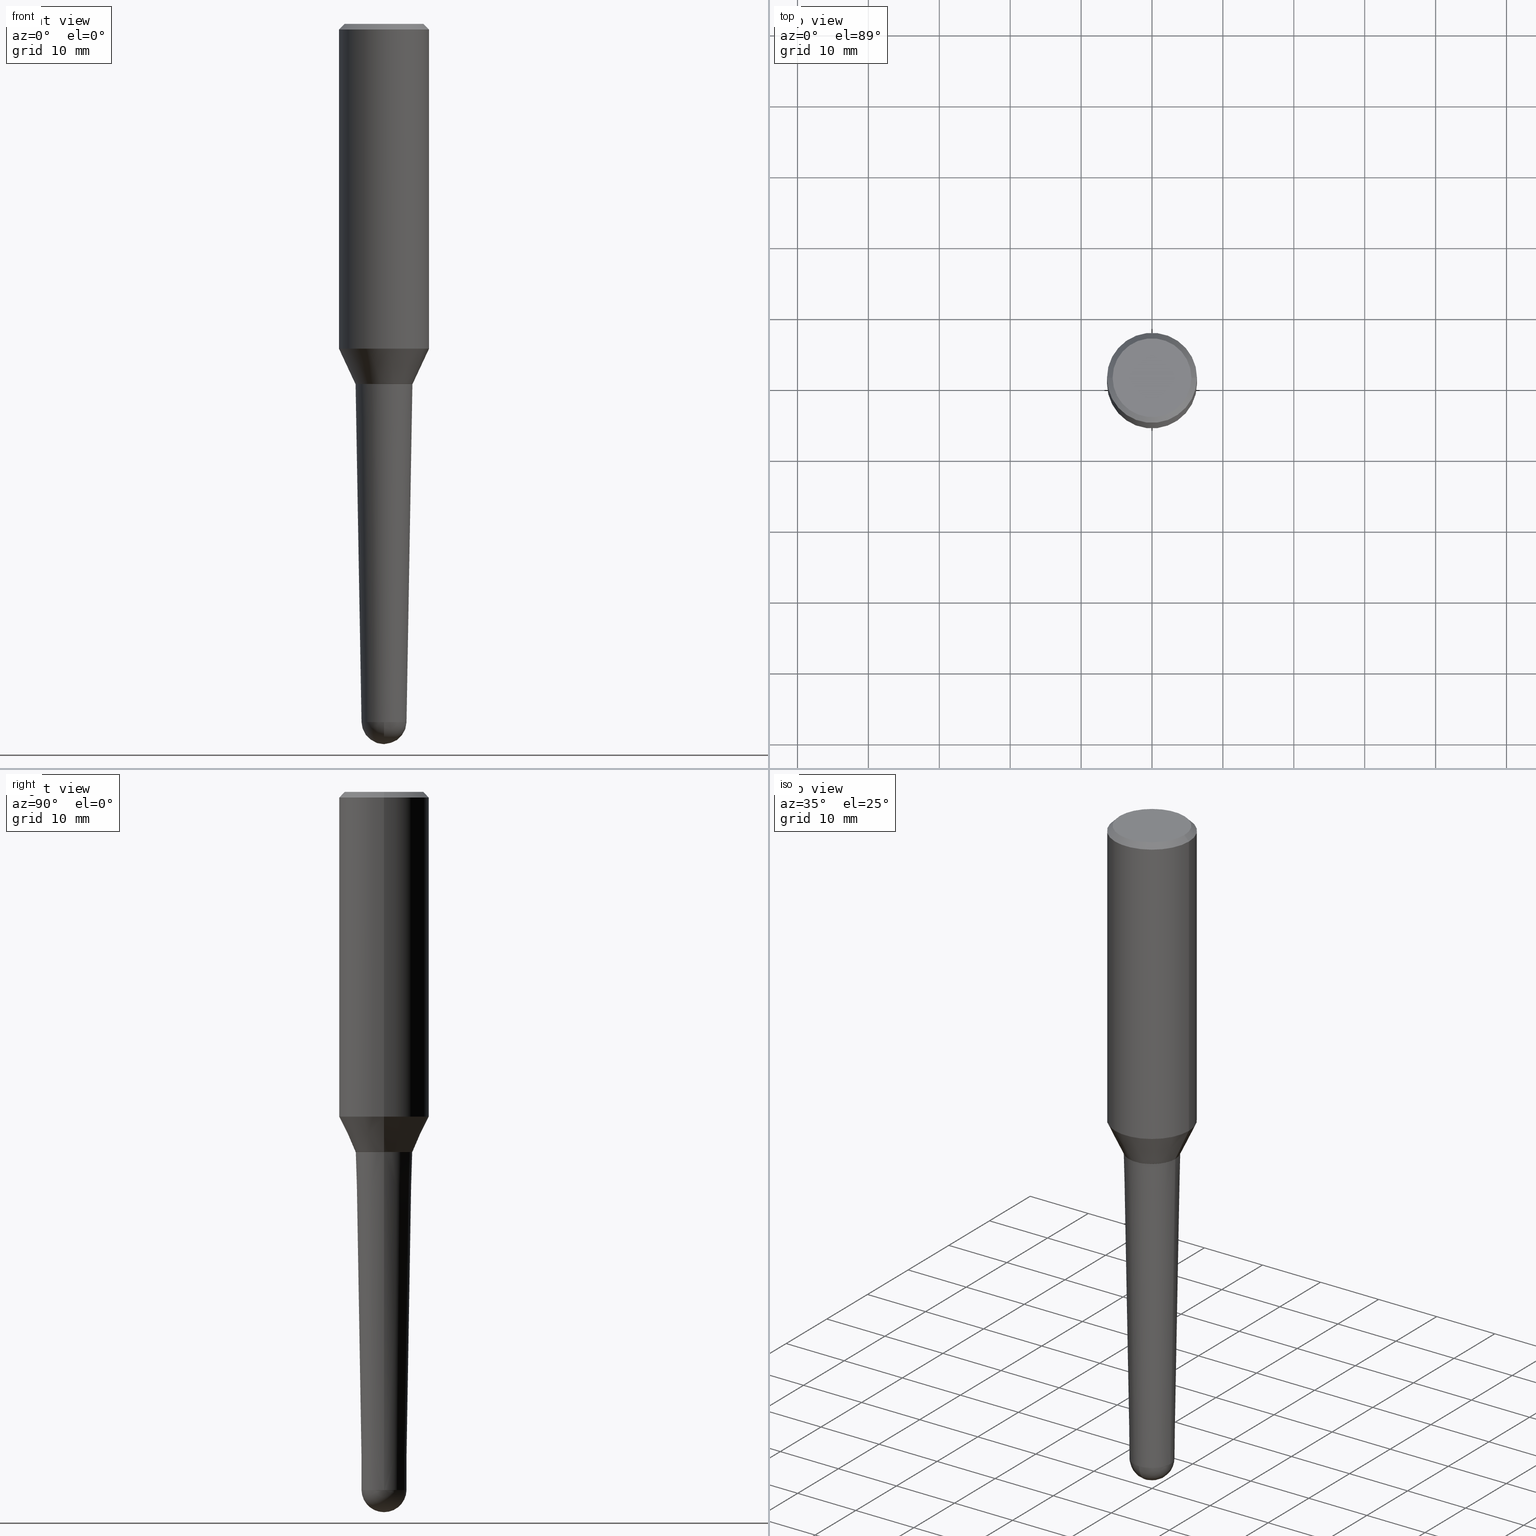
[diagram: canonical four-view strip — front | top / right | iso, engineering-drawing reading convention]
A machine part, canonical four-view strip (front | top / right | iso — engineering-drawing reading convention). The complete STEP part file that produces these views, byte-faithful:
ISO-10303-21;
HEADER;
FILE_DESCRIPTION (( 'STEP AP203' ),
    '1' );
FILE_NAME ('32484.STEP',
    '2024-03-04T15:26:41',
    ( '' ),
    ( '' ),
    'SwSTEP 2.0',
    'SolidWorks 2023',
    '' );
FILE_SCHEMA (( 'CONFIG_CONTROL_DESIGN' ));
ENDSEC;

DATA;
#1 = ORIENTED_EDGE ( 'NONE', *, *, #455, .T. ) ;
#2 = ADVANCED_FACE ( 'NONE', ( #394 ), #109, .T. ) ;
#3 = CARTESIAN_POINT ( 'NONE',  ( -0.1587472877458968035, -5.853249615722215052E-15, -1.999499999999999833 ) ) ;
#4 = ORIENTED_EDGE ( 'NONE', *, *, #215, .T. ) ;
#5 = LENGTH_MEASURE_WITH_UNIT ( LENGTH_MEASURE( 0.02539999999999999897 ), #334 );
#6 = VERTEX_POINT ( 'NONE', #405 ) ;
#7 = CIRCLE ( 'NONE', #284, 0.1249809618945493112 ) ;
#8 =( NAMED_UNIT ( * ) PLANE_ANGLE_UNIT ( ) SI_UNIT ( $, .RADIAN. ) );
#9 = VERTEX_POINT ( 'NONE', #70 ) ;
#10 = APPROVAL_STATUS ( 'not_yet_approved' ) ;
#11 = DIRECTION ( 'NONE',  ( -0.7071067811864992780, 7.493145998870180611E-15, 0.7071067811865957564 ) ) ;
#12 = APPROVAL_DATE_TIME ( #199, #86 ) ;
#13 = APPROVAL_PERSON_ORGANIZATION ( #447, #86, #155 ) ;
#14 = CIRCLE ( 'NONE', #392, 0.1249999999999999445 ) ;
#15 = LOCAL_TIME ( 10, 26, 41.00000000000000000, #201 ) ;
#16 = DIRECTION ( 'NONE',  ( 0.7071067811865496822, -7.319954787623263934E-15, -0.7071067811865454633 ) ) ;
#17 = SHAPE_DEFINITION_REPRESENTATION ( #312, #345 ) ;
#18 = PRODUCT_DEFINITION ( 'UNKNOWN', '', #461, #388 ) ;
#19 = DIRECTION ( 'NONE',  ( -2.445468806185136597E-29, 3.491481338843145583E-15, 1.000000000000000000 ) ) ;
#20 = APPROVAL ( #197, 'UNSPECIFIED' ) ;
#21 = PERSON_AND_ORGANIZATION_ROLE ( 'creator' ) ;
#22 = CARTESIAN_POINT ( 'NONE',  ( -8.880431458247209991E-16, -0.1249809618945623979, -3.877181550804660315 ) ) ;
#23 = VECTOR ( 'NONE', #267, 39.37007874015748143 ) ;
#24 = CC_DESIGN_APPROVAL ( #20, ( #461 ) ) ;
#25 = CARTESIAN_POINT ( 'NONE',  ( 4.890937612370273194E-29, -6.982962677686291165E-15, -2.000000000000000000 ) ) ;
#26 = EDGE_CURVE ( 'NONE', #180, #228, #244, .T. ) ;
#27 = FACE_OUTER_BOUND ( 'NONE', #356, .T. ) ;
#28 = FACE_OUTER_BOUND ( 'NONE', #69, .T. ) ;
#29 = DIRECTION ( 'NONE',  ( -1.000000000000000000, 6.982962677686265922E-15, -4.876176775795935793E-29 ) ) ;
#30 = CIRCLE ( 'NONE', #453, 0.1577472877458967193 ) ;
#31 = DIRECTION ( 'NONE',  ( 1.000000000000000000, -6.982962677686266711E-15, 0.000000000000000000 ) ) ;
#32 = CC_DESIGN_PERSON_AND_ORGANIZATION_ASSIGNMENT ( #294, #436, ( #167 ) ) ;
#33 = CC_DESIGN_PERSON_AND_ORGANIZATION_ASSIGNMENT ( #231, #440, ( #461 ) ) ;
#34 = CARTESIAN_POINT ( 'NONE',  ( -0.2500000000000000000, -1.427178414605506576E-15, -0.03125000000000005551 ) ) ;
#35 = ORIENTED_EDGE ( 'NONE', *, *, #278, .F. ) ;
#36 = DIRECTION ( 'NONE',  ( 2.445468806185136597E-29, -3.491481338843145583E-15, -1.000000000000000000 ) ) ;
#37 = EDGE_LOOP ( 'NONE', ( #189, #79, #35, #252 ) ) ;
#38 = AXIS2_PLACEMENT_3D ( 'NONE', #344, #240, #452 ) ;
#39 = ORIENTED_EDGE ( 'NONE', *, *, #121, .T. ) ;
#40 = SECURITY_CLASSIFICATION ( '', '', #235 ) ;
#41 = DIRECTION ( 'NONE',  ( -2.445468806185136597E-29, 3.491481338843145583E-15, 1.000000000000000000 ) ) ;
#42 = DIRECTION ( 'NONE',  ( 1.000000000000000000, -6.982962677686267499E-15, 4.852736867747363965E-29 ) ) ;
#43 = AXIS2_PLACEMENT_3D ( 'NONE', #399, #77, #42 ) ;
#44 = ORIENTED_EDGE ( 'NONE', *, *, #168, .T. ) ;
#45 = VERTEX_POINT ( 'NONE', #292 ) ;
#46 = DIRECTION ( 'NONE',  ( 1.000000000000000000, -6.982962677686265922E-15, 4.883557194083112340E-29 ) ) ;
#47 = ORIENTED_EDGE ( 'NONE', *, *, #168, .F. ) ;
#48 = DATE_AND_TIME ( #266, #338 ) ;
#49 = AXIS2_PLACEMENT_3D ( 'NONE', #246, #110, #254 ) ;
#50 = CARTESIAN_POINT ( 'NONE',  ( 9.770155035872819834E-29, -1.310851785081028701E-14, -3.875000000000000000 ) ) ;
#51 = ADVANCED_FACE ( 'NONE', ( #268 ), #307, .T. ) ;
#52 = AXIS2_PLACEMENT_3D ( 'NONE', #97, #420, #61 ) ;
#53 =( CONVERSION_BASED_UNIT ( 'INCH', #5 ) LENGTH_UNIT ( ) NAMED_UNIT ( #208 ) );
#54 = CIRCLE ( 'NONE', #247, 0.1587472877458968035 ) ;
#55 = LOCAL_TIME ( 10, 26, 41.00000000000000000, #269 ) ;
#56 = EDGE_CURVE ( 'NONE', #227, #362, #363, .T. ) ;
#57 = PERSON_AND_ORGANIZATION ( #172, #350 ) ;
#58 = APPROVAL_ROLE ( '' ) ;
#59 = CARTESIAN_POINT ( 'NONE',  ( 7.642090019328565002E-31, -1.091087918388484967E-16, -0.03125000000000005551 ) ) ;
#60 = CARTESIAN_POINT ( 'NONE',  ( -0.1587472877458968035, -5.853249615722215052E-15, -1.999499999999999833 ) ) ;
#61 = DIRECTION ( 'NONE',  ( 6.982962677686265922E-15, 1.000000000000000000, -4.370956789862822727E-15 ) ) ;
#62 = DIRECTION ( 'NONE',  ( 1.000000000000000000, -6.982962677686267499E-15, 0.000000000000000000 ) ) ;
#63 = CIRCLE ( 'NONE', #387, 0.1582472877458967198 ) ;
#64 = DIRECTION ( 'NONE',  ( 1.000000000000000000, -6.982962677686266711E-15, 0.000000000000000000 ) ) ;
#65 = EDGE_CURVE ( 'NONE', #357, #143, #63, .T. ) ;
#66 = DIRECTION ( 'NONE',  ( -2.445468806185136597E-29, 3.491481338843145583E-15, 1.000000000000000000 ) ) ;
#67 = AXIS2_PLACEMENT_3D ( 'NONE', #25, #205, #164 ) ;
#68 = FACE_OUTER_BOUND ( 'NONE', #117, .T. ) ;
#69 = EDGE_LOOP ( 'NONE', ( #176, #119, #80, #47, #432 ) ) ;
#70 = CARTESIAN_POINT ( 'NONE',  ( -0.1249809618945493112, -9.255582334932912889E-15, -3.877181550804660759 ) ) ;
#71 = CARTESIAN_POINT ( 'NONE',  ( 4.889714877967179832E-29, -6.981216937016868873E-15, -1.999499999999999833 ) ) ;
#72 = EDGE_LOOP ( 'NONE', ( #250, #286, #328, #401 ) ) ;
#73 = VERTEX_POINT ( 'NONE', #239 ) ;
#74 = CARTESIAN_POINT ( 'NONE',  ( 9.481526538409310003E-29, -1.353710703194140102E-14, -3.877181550804660759 ) ) ;
#75 = LOCAL_TIME ( 10, 26, 41.00000000000000000, #343 ) ;
#76 = AXIS2_PLACEMENT_3D ( 'NONE', #380, #101, #448 ) ;
#77 = DIRECTION ( 'NONE',  ( -2.445468806185136597E-29, 3.491481338843145583E-15, 1.000000000000000000 ) ) ;
#78 = CARTESIAN_POINT ( 'NONE',  ( 0.2500000000000001110, -1.745740669421565494E-15, 5.931196827434418047E-16 ) ) ;
#79 = ORIENTED_EDGE ( 'NONE', *, *, #418, .T. ) ;
#80 = ORIENTED_EDGE ( 'NONE', *, *, #237, .F. ) ;
#81 = ORIENTED_EDGE ( 'NONE', *, *, #411, .T. ) ;
#82 = LINE ( 'NONE', #264, #358 ) ;
#83 = VERTEX_POINT ( 'NONE', #135 ) ;
#84 = EDGE_LOOP ( 'NONE', ( #151, #398, #219, #283 ) ) ;
#85 = FACE_OUTER_BOUND ( 'NONE', #112, .T. ) ;
#86 = APPROVAL ( #10, 'UNSPECIFIED' ) ;
#87 = CIRCLE ( 'NONE', #38, 0.2500000000000002220 ) ;
#88 = CC_DESIGN_SECURITY_CLASSIFICATION ( #40, ( #461 ) ) ;
#89 = CARTESIAN_POINT ( 'NONE',  ( 7.642090019328565002E-31, -1.091087918388484967E-16, -0.03125000000000005551 ) ) ;
#90 = DIRECTION ( 'NONE',  ( -2.445468806185136597E-29, 3.491481338843145583E-15, 1.000000000000000000 ) ) ;
#91 = PERSON_AND_ORGANIZATION ( #172, #350 ) ;
#92 = APPROVAL_STATUS ( 'not_yet_approved' ) ;
#93 = DATE_TIME_ROLE ( 'classification_date' ) ;
#94 = CIRCLE ( 'NONE', #424, 0.1249809618945493112 ) ;
#95 = DIRECTION ( 'NONE',  ( 1.000000000000000000, -6.982962677686266711E-15, 4.880466792705915158E-29 ) ) ;
#96 = DIRECTION ( 'NONE',  ( -2.445468806185136597E-29, 3.491481338843145583E-15, 1.000000000000000000 ) ) ;
#97 = CARTESIAN_POINT ( 'NONE',  ( 9.770155035872819834E-29, -1.310851785081028701E-14, -3.875000000000000000 ) ) ;
#98 = AXIS2_PLACEMENT_3D ( 'NONE', #71, #217, #179 ) ;
#99 = CARTESIAN_POINT ( 'NONE',  ( 4.890937612370273194E-29, -6.982962677686291165E-15, -2.000000000000000000 ) ) ;
#100 = UNCERTAINTY_MEASURE_WITH_UNIT (LENGTH_MEASURE( 1.000000000000000082E-05 ), #53, 'distance_accuracy_value', 'NONE');
#101 = DIRECTION ( 'NONE',  ( -2.445468806185136597E-29, 3.491481338843145583E-15, 1.000000000000000000 ) ) ;
#102 = CC_DESIGN_PERSON_AND_ORGANIZATION_ASSIGNMENT ( #410, #154, ( #40 ) ) ;
#103 = ADVANCED_FACE ( 'NONE', ( #131 ), #243, .T. ) ;
#104 = DIRECTION ( 'NONE',  ( -7.105427357601001070E-15, -1.000000000000000000, 0.000000000000000000 ) ) ;
#105 = CONICAL_SURFACE ( 'NONE', #230, 0.1582472877458967198, 0.7853981633973801113 ) ;
#106 = DIRECTION ( 'NONE',  ( -2.445468806185136597E-29, 3.491481338843145583E-15, 1.000000000000000000 ) ) ;
#107 = ORIENTED_EDGE ( 'NONE', *, *, #381, .F. ) ;
#108 = DIRECTION ( 'NONE',  ( 1.000000000000000000, -6.982962677686267499E-15, 4.852736867747363965E-29 ) ) ;
#109 = CYLINDRICAL_SURFACE ( 'NONE', #43, 0.2500000000000001110 ) ;
#110 = DIRECTION ( 'NONE',  ( -2.445468806185136597E-29, 3.491481338843145583E-15, 1.000000000000000000 ) ) ;
#111 = VERTEX_POINT ( 'NONE', #347 ) ;
#112 = EDGE_LOOP ( 'NONE', ( #433, #330 ) ) ;
#113 = CARTESIAN_POINT ( 'NONE',  ( 9.770155035872819834E-29, -1.310851785081028701E-14, -3.875000000000000000 ) ) ;
#114 = CONICAL_SURFACE ( 'NONE', #191, 0.2500000000000000000, 0.7853981633974512766 ) ;
#115 = ORIENTED_EDGE ( 'NONE', *, *, #26, .F. ) ;
#116 = LOCAL_TIME ( 10, 26, 41.00000000000000000, #368 ) ;
#117 = EDGE_LOOP ( 'NONE', ( #332, #184, #259, #367 ) ) ;
#118 = DIRECTION ( 'NONE',  ( -2.445468806185136597E-29, 3.491481338843145583E-15, 1.000000000000000000 ) ) ;
#119 = ORIENTED_EDGE ( 'NONE', *, *, #378, .T. ) ;
#120 = EDGE_LOOP ( 'NONE', ( #39, #365, #115, #403 ) ) ;
#121 = EDGE_CURVE ( 'NONE', #143, #357, #144, .T. ) ;
#122 = DIRECTION ( 'NONE',  ( 1.000000000000000000, 0.000000000000000000, 0.000000000000000000 ) ) ;
#123 = VECTOR ( 'NONE', #351, 39.37007874015748143 ) ;
#124 = DIRECTION ( 'NONE',  ( 1.000000000000000000, -6.982962677686266711E-15, 0.000000000000000000 ) ) ;
#125 = CARTESIAN_POINT ( 'NONE',  ( -0.2500000000000000000, 1.636631877582718169E-15, -0.03125000000000005551 ) ) ;
#126 = AXIS2_PLACEMENT_3D ( 'NONE', #216, #397, #258 ) ;
#127 = LINE ( 'NONE', #346, #23 ) ;
#128 = CALENDAR_DATE ( 2024, 4, 3 ) ;
#129 = AXIS2_PLACEMENT_3D ( 'NONE', #282, #423, #421 ) ;
#130 = LINE ( 'NONE', #204, #333 ) ;
#131 = FACE_OUTER_BOUND ( 'NONE', #72, .T. ) ;
#132 = DIRECTION ( 'NONE',  ( 1.000000000000000000, -6.982962677686266711E-15, 0.000000000000000000 ) ) ;
#133 = AXIS2_PLACEMENT_3D ( 'NONE', #138, #106, #249 ) ;
#134 = MANIFOLD_SOLID_BREP ( 'Body-Move/Copy2[1]', #329 ) ;
#135 = CARTESIAN_POINT ( 'NONE',  ( 0.2500000000000000000, -1.854849461260415384E-15, -0.03125000000000005551 ) ) ;
#136 = EDGE_CURVE ( 'NONE', #390, #83, #385, .T. ) ;
#137 = CARTESIAN_POINT ( 'NONE',  ( -0.2500000000000002220, -4.521604876772416489E-15, -1.803807927055801397 ) ) ;
#138 = CARTESIAN_POINT ( 'NONE',  ( 4.411156017964436703E-29, -6.297961716172668531E-15, -1.803807927055801397 ) ) ;
#139 = VECTOR ( 'NONE', #160, 39.37007874015748143 ) ;
#140 = DIRECTION ( 'NONE',  ( -2.445468806185136597E-29, 3.491481338843145583E-15, 1.000000000000000000 ) ) ;
#141 = EDGE_LOOP ( 'NONE', ( #324, #438, #253, #44, #430 ) ) ;
#142 = DIRECTION ( 'NONE',  ( -2.445468806185136597E-29, 3.491481338843145583E-15, 1.000000000000000000 ) ) ;
#143 = VERTEX_POINT ( 'NONE', #273 ) ;
#144 = CIRCLE ( 'NONE', #416, 0.1582472877458967198 ) ;
#145 = CARTESIAN_POINT ( 'NONE',  ( 7.642090019328565002E-31, -1.091087918388484967E-16, -0.03125000000000005551 ) ) ;
#146 = ORIENTED_EDGE ( 'NONE', *, *, #188, .T. ) ;
#147 = ORIENTED_EDGE ( 'NONE', *, *, #301, .T. ) ;
#148 = CARTESIAN_POINT ( 'NONE',  ( 0.000000000000000000, 0.000000000000000000, 0.000000000000000000 ) ) ;
#149 = ADVANCED_FACE ( 'NONE', ( #28 ), #210, .T. ) ;
#150 = CIRCLE ( 'NONE', #67, 0.1577472877458967193 ) ;
#151 = ORIENTED_EDGE ( 'NONE', *, *, #26, .T. ) ;
#152 = CARTESIAN_POINT ( 'NONE',  ( 0.2500000000000000000, -1.824233291281731597E-15, -0.03125000000000005551 ) ) ;
#153 = EDGE_LOOP ( 'NONE', ( #256, #354, #146, #300 ) ) ;
#154 = PERSON_AND_ORGANIZATION_ROLE ( 'classification_officer' ) ;
#155 = APPROVAL_ROLE ( '' ) ;
#156 = DIRECTION ( 'NONE',  ( -2.438088387897960049E-29, 3.491481338843145188E-15, 1.000000000000000000 ) ) ;
#157 = AXIS2_PLACEMENT_3D ( 'NONE', #320, #348, #29 ) ;
#158 = DIRECTION ( 'NONE',  ( -0.7071067811865496822, 2.468850131082278754E-15, -0.7071067811865454633 ) ) ;
#159 = PERSON_AND_ORGANIZATION_ROLE ( 'creator' ) ;
#160 = DIRECTION ( 'NONE',  ( 0.7071067811864992780, -2.468850131081751401E-15, 0.7071067811865957564 ) ) ;
#161 = DATE_AND_TIME ( #128, #75 ) ;
#162 = PLANE ( 'NONE',  #442 ) ;
#163 = CC_DESIGN_DATE_AND_TIME_ASSIGNMENT ( #372, #93, ( #40 ) ) ;
#164 = DIRECTION ( 'NONE',  ( 1.000000000000000000, -6.982962677686264344E-15, 0.000000000000000000 ) ) ;
#165 = AXIS2_PLACEMENT_3D ( 'NONE', #59, #96, #379 ) ;
#166 = DIRECTION ( 'NONE',  ( -2.445468806185136597E-29, 3.491481338843145583E-15, 1.000000000000000000 ) ) ;
#167 = PRODUCT ( '32484', '32484', '', ( #260 ) ) ;
#168 = EDGE_CURVE ( 'NONE', #321, #111, #130, .T. ) ;
#169 = CARTESIAN_POINT ( 'NONE',  ( 0.1587472877458968035, -8.089743322530388676E-15, -1.999499999999999833 ) ) ;
#170 =( GEOMETRIC_REPRESENTATION_CONTEXT ( 3 ) GLOBAL_UNCERTAINTY_ASSIGNED_CONTEXT ( ( #100 ) ) GLOBAL_UNIT_ASSIGNED_CONTEXT ( ( #53, #8, #302 ) ) REPRESENTATION_CONTEXT ( 'NONE', 'WORKASPACE' ) );
#171 = CARTESIAN_POINT ( 'NONE',  ( 0.1249809618945493112, -1.124717526239724726E-14, -3.877181550804660759 ) ) ;
#172 = PERSON ( 'UNSPECIFIED', 'UNSPECIFIED', 'UNSPECIFIED', ('UNSPECIFIED'), ('UNSPECIFIED'), ('UNSPECIFIED') ) ;
#173 = EDGE_LOOP ( 'NONE', ( #335, #182, #226, #297 ) ) ;
#174 = DIRECTION ( 'NONE',  ( 1.000000000000000000, -6.982962677686266711E-15, 0.000000000000000000 ) ) ;
#175 = FACE_OUTER_BOUND ( 'NONE', #37, .T. ) ;
#176 = ORIENTED_EDGE ( 'NONE', *, *, #366, .T. ) ;
#177 = ADVANCED_FACE ( 'NONE', ( #382 ), #340, .T. ) ;
#178 = VECTOR ( 'NONE', #158, 39.37007874015748143 ) ;
#179 = DIRECTION ( 'NONE',  ( 1.000000000000000000, -6.982962677686266711E-15, 0.000000000000000000 ) ) ;
#180 = VERTEX_POINT ( 'NONE', #169 ) ;
#181 = APPROVAL_PERSON_ORGANIZATION ( #57, #414, #374 ) ;
#182 = ORIENTED_EDGE ( 'NONE', *, *, #381, .T. ) ;
#183 = DIRECTION ( 'NONE',  ( 1.000000000000000000, -6.982962677686267499E-15, 0.000000000000000000 ) ) ;
#184 = ORIENTED_EDGE ( 'NONE', *, *, #441, .T. ) ;
#185 = ORIENTED_EDGE ( 'NONE', *, *, #136, .T. ) ;
#186 = CLOSED_SHELL ( 'NONE', ( #248, #386, #177, #371, #422, #280, #396, #2, #407, #203 ) ) ;
#187 = EDGE_CURVE ( 'NONE', #45, #364, #87, .T. ) ;
#188 = EDGE_CURVE ( 'NONE', #143, #180, #271, .T. ) ;
#189 = ORIENTED_EDGE ( 'NONE', *, *, #245, .F. ) ;
#190 = CARTESIAN_POINT ( 'NONE',  ( 4.890937612370273194E-29, -6.982962677686291165E-15, -2.000000000000000000 ) ) ;
#191 = AXIS2_PLACEMENT_3D ( 'NONE', #145, #36, #221 ) ;
#192 = VECTOR ( 'NONE', #331, 39.37007874015748143 ) ;
#193 = ORIENTED_EDGE ( 'NONE', *, *, #301, .F. ) ;
#194 = CALENDAR_DATE ( 2024, 4, 3 ) ;
#195 = CARTESIAN_POINT ( 'NONE',  ( 4.890937612370273194E-29, -6.982962677686291165E-15, -2.000000000000000000 ) ) ;
#196 = DIRECTION ( 'NONE',  ( 2.445468806185136597E-29, -3.491481338843145583E-15, -1.000000000000000000 ) ) ;
#197 = APPROVAL_STATUS ( 'not_yet_approved' ) ;
#198 = LINE ( 'NONE', #125, #178 ) ;
#199 = DATE_AND_TIME ( #409, #55 ) ;
#200 = CONICAL_SURFACE ( 'NONE', #98, 0.1587472877458968035, 0.4363323129985704485 ) ;
#201 = COORDINATED_UNIVERSAL_TIME_OFFSET ( 5, 0, .BEHIND. ) ;
#202 = COORDINATED_UNIVERSAL_TIME_OFFSET ( 5, 0, .BEHIND. ) ;
#203 = ADVANCED_FACE ( 'NONE', ( #27 ), #162, .F. ) ;
#204 = CARTESIAN_POINT ( 'NONE',  ( 0.1249809618945493112, -1.440984442427236798E-14, -3.877181550804660759 ) ) ;
#205 = DIRECTION ( 'NONE',  ( -2.445468806185136597E-29, 3.491481338843145583E-15, 1.000000000000000000 ) ) ;
#206 = AXIS2_PLACEMENT_3D ( 'NONE', #389, #207, #64 ) ;
#207 = DIRECTION ( 'NONE',  ( -2.445468806185136597E-29, 3.491481338843145583E-15, 1.000000000000000000 ) ) ;
#208 = DIMENSIONAL_EXPONENTS ( 1.000000000000000000, 0.000000000000000000, 0.000000000000000000, 0.000000000000000000, 0.000000000000000000, 0.000000000000000000, 0.000000000000000000 ) ;
#209 = DIRECTION ( 'NONE',  ( -2.445468806185136597E-29, 3.491481338843145583E-15, 1.000000000000000000 ) ) ;
#210 = CONICAL_SURFACE ( 'NONE', #76, 0.1249809618945493112, 0.01745329251994322262 ) ;
#211 = CARTESIAN_POINT ( 'NONE',  ( 0.1582472877458967198, -8.087997581860967961E-15, -2.000000000000000000 ) ) ;
#212 = ORIENTED_EDGE ( 'NONE', *, *, #56, .T. ) ;
#213 = FACE_OUTER_BOUND ( 'NONE', #295, .T. ) ;
#214 = CYLINDRICAL_SURFACE ( 'NONE', #375, 0.2500000000000001110 ) ;
#215 = EDGE_CURVE ( 'NONE', #228, #180, #54, .T. ) ;
#216 = CARTESIAN_POINT ( 'NONE',  ( 4.889714877967179832E-29, -6.981216937016868873E-15, -1.999499999999999833 ) ) ;
#217 = DIRECTION ( 'NONE',  ( -2.445468806185136597E-29, 3.491481338843145583E-15, 1.000000000000000000 ) ) ;
#218 = ORIENTED_EDGE ( 'NONE', *, *, #255, .F. ) ;
#219 = ORIENTED_EDGE ( 'NONE', *, *, #187, .F. ) ;
#220 = AXIS2_PLACEMENT_3D ( 'NONE', #74, #142, #31 ) ;
#221 = DIRECTION ( 'NONE',  ( -1.000000000000000000, 6.982962677686266711E-15, 0.000000000000000000 ) ) ;
#222 = VERTEX_POINT ( 'NONE', #445 ) ;
#223 = EDGE_CURVE ( 'NONE', #180, #45, #127, .T. ) ;
#224 = FACE_OUTER_BOUND ( 'NONE', #458, .T. ) ;
#225 = VERTEX_POINT ( 'NONE', #22 ) ;
#226 = ORIENTED_EDGE ( 'NONE', *, *, #272, .T. ) ;
#227 = VERTEX_POINT ( 'NONE', #310 ) ;
#228 = VERTEX_POINT ( 'NONE', #60 ) ;
#229 = LINE ( 'NONE', #299, #192 ) ;
#230 = AXIS2_PLACEMENT_3D ( 'NONE', #359, #66, #183 ) ;
#231 = PERSON_AND_ORGANIZATION ( #172, #350 ) ;
#232 = DIRECTION ( 'NONE',  ( 6.982962677686265922E-15, 1.000000000000000000, 0.000000000000000000 ) ) ;
#233 = CARTESIAN_POINT ( 'NONE',  ( 7.642090019328565002E-31, -1.091087918388484967E-16, -0.03125000000000005551 ) ) ;
#234 = DATE_AND_TIME ( #342, #15 ) ;
#235 = SECURITY_CLASSIFICATION_LEVEL ( 'unclassified' ) ;
#236 = AXIS2_PLACEMENT_3D ( 'NONE', #304, #118, #124 ) ;
#237 = EDGE_CURVE ( 'NONE', #111, #222, #150, .T. ) ;
#238 = CC_DESIGN_PERSON_AND_ORGANIZATION_ASSIGNMENT ( #303, #21, ( #18 ) ) ;
#239 = CARTESIAN_POINT ( 'NONE',  ( 8.727373923310620192E-16, 0.1249809618945357664, -3.877181550804661203 ) ) ;
#240 = DIRECTION ( 'NONE',  ( -2.445468806185136597E-29, 3.491481338843145583E-15, 1.000000000000000000 ) ) ;
#241 = CIRCLE ( 'NONE', #220, 0.1249809618945493112 ) ;
#242 = DIRECTION ( 'NONE',  ( -2.445468806185136597E-29, 3.491481338843145583E-15, 1.000000000000000000 ) ) ;
#243 = SPHERICAL_SURFACE ( 'NONE', #52, 0.1249999999999999445 ) ;
#244 = CIRCLE ( 'NONE', #126, 0.1587472877458968035 ) ;
#245 = EDGE_CURVE ( 'NONE', #6, #225, #419, .T. ) ;
#246 = CARTESIAN_POINT ( 'NONE',  ( 1.325193512763255586E-44, -1.892025123553597709E-30, -5.418975328622247529E-16 ) ) ;
#247 = AXIS2_PLACEMENT_3D ( 'NONE', #449, #242, #277 ) ;
#248 = ADVANCED_FACE ( 'NONE', ( #462 ), #114, .T. ) ;
#249 = DIRECTION ( 'NONE',  ( 1.000000000000000000, -6.982962677686268288E-15, 0.000000000000000000 ) ) ;
#250 = ORIENTED_EDGE ( 'NONE', *, *, #418, .F. ) ;
#251 = FACE_OUTER_BOUND ( 'NONE', #460, .T. ) ;
#252 = ORIENTED_EDGE ( 'NONE', *, *, #318, .F. ) ;
#253 = ORIENTED_EDGE ( 'NONE', *, *, #318, .T. ) ;
#254 = DIRECTION ( 'NONE',  ( 1.000000000000000000, -6.982962677686266711E-15, 4.880466792705915158E-29 ) ) ;
#255 = EDGE_CURVE ( 'NONE', #228, #364, #327, .T. ) ;
#256 = ORIENTED_EDGE ( 'NONE', *, *, #426, .F. ) ;
#257 = DIRECTION ( 'NONE',  ( 6.982962677686265922E-15, 1.000000000000000000, -4.370956789862822727E-15 ) ) ;
#258 = DIRECTION ( 'NONE',  ( 1.000000000000000000, -6.982962677686266711E-15, 0.000000000000000000 ) ) ;
#259 = ORIENTED_EDGE ( 'NONE', *, *, #455, .F. ) ;
#260 = MECHANICAL_CONTEXT ( 'NONE', #316, 'mechanical' ) ;
#261 = ORIENTED_EDGE ( 'NONE', *, *, #56, .F. ) ;
#262 = DIRECTION ( 'NONE',  ( -2.445468806185136597E-29, 3.491481338843145583E-15, 1.000000000000000000 ) ) ;
#263 = AXIS2_PLACEMENT_3D ( 'NONE', #279, #395, #104 ) ;
#264 = CARTESIAN_POINT ( 'NONE',  ( -0.1582472877458967198, -5.858548070070438242E-15, -2.000000000000000000 ) ) ;
#265 = AXIS2_PLACEMENT_3D ( 'NONE', #313, #274, #95 ) ;
#266 = CALENDAR_DATE ( 2024, 4, 3 ) ;
#267 = DIRECTION ( 'NONE',  ( 0.4226182617406886166, 2.132291770428340684E-16, 0.9063077870366550437 ) ) ;
#268 = FACE_OUTER_BOUND ( 'NONE', #141, .T. ) ;
#269 = COORDINATED_UNIVERSAL_TIME_OFFSET ( 5, 0, .BEHIND. ) ;
#270 = CIRCLE ( 'NONE', #49, 0.2187500000000003053 ) ;
#271 = LINE ( 'NONE', #211, #139 ) ;
#272 = EDGE_CURVE ( 'NONE', #45, #83, #456, .T. ) ;
#273 = CARTESIAN_POINT ( 'NONE',  ( 0.1582472877458967198, -8.087997581860967961E-15, -2.000000000000000000 ) ) ;
#274 = DIRECTION ( 'NONE',  ( -2.445468806185136597E-29, 3.491481338843145583E-15, 1.000000000000000000 ) ) ;
#275 = APPROVAL_PERSON_ORGANIZATION ( #91, #20, #58 ) ;
#276 = VECTOR ( 'NONE', #16, 39.37007874015748143 ) ;
#277 = DIRECTION ( 'NONE',  ( 1.000000000000000000, -6.982962677686266711E-15, 0.000000000000000000 ) ) ;
#278 = EDGE_CURVE ( 'NONE', #321, #73, #241, .T. ) ;
#279 = CARTESIAN_POINT ( 'NONE',  ( 9.770155035872819834E-29, -1.310851785081028701E-14, -3.875000000000000000 ) ) ;
#280 = ADVANCED_FACE ( 'NONE', ( #431 ), #105, .T. ) ;
#281 = CC_DESIGN_DATE_AND_TIME_ASSIGNMENT ( #48, #341, ( #18 ) ) ;
#282 = CARTESIAN_POINT ( 'NONE',  ( 4.890937612370273194E-29, -6.982962677686291165E-15, -2.000000000000000000 ) ) ;
#283 = ORIENTED_EDGE ( 'NONE', *, *, #223, .F. ) ;
#284 = AXIS2_PLACEMENT_3D ( 'NONE', #457, #140, #174 ) ;
#285 = FACE_OUTER_BOUND ( 'NONE', #120, .T. ) ;
#286 = ORIENTED_EDGE ( 'NONE', *, *, #245, .T. ) ;
#287 = ADVANCED_FACE ( 'NONE', ( #175 ), #290, .T. ) ;
#288 = DIRECTION ( 'NONE',  ( -0.4226182617406886166, 6.167240084480777658E-15, 0.9063077870366550437 ) ) ;
#289 = EDGE_LOOP ( 'NONE', ( #261, #291, #1, #437 ) ) ;
#290 = SPHERICAL_SURFACE ( 'NONE', #369, 0.1249999999999999445 ) ;
#291 = ORIENTED_EDGE ( 'NONE', *, *, #446, .T. ) ;
#292 = CARTESIAN_POINT ( 'NONE',  ( 0.2500000000000002220, -8.043702385594237575E-15, -1.803807927055801397 ) ) ;
#293 = CIRCLE ( 'NONE', #412, 0.2500000000000000000 ) ;
#294 = PERSON_AND_ORGANIZATION ( #172, #350 ) ;
#295 = EDGE_LOOP ( 'NONE', ( #325, #428 ) ) ;
#296 = CC_DESIGN_APPROVAL ( #414, ( #18 ) ) ;
#297 = ORIENTED_EDGE ( 'NONE', *, *, #136, .F. ) ;
#298 = APPLICATION_CONTEXT ( 'configuration controlled 3d designs of mechanical parts and assemblies' ) ;
#299 = CARTESIAN_POINT ( 'NONE',  ( -0.2500000000000001110, 1.776356839400253620E-15, 5.931196827434174486E-16 ) ) ;
#300 = ORIENTED_EDGE ( 'NONE', *, *, #215, .F. ) ;
#301 = EDGE_CURVE ( 'NONE', #362, #227, #270, .T. ) ;
#302 =( NAMED_UNIT ( * ) SI_UNIT ( $, .STERADIAN. ) SOLID_ANGLE_UNIT ( ) );
#303 = PERSON_AND_ORGANIZATION ( #172, #350 ) ;
#304 = CARTESIAN_POINT ( 'NONE',  ( 9.481526538409310003E-29, -1.353710703194140102E-14, -3.877181550804660759 ) ) ;
#305 = AXIS2_PLACEMENT_3D ( 'NONE', #195, #156, #339 ) ;
#306 = LINE ( 'NONE', #152, #276 ) ;
#307 = CONICAL_SURFACE ( 'NONE', #444, 0.1249809618945493112, 0.01745329251994322262 ) ;
#308 = DIRECTION ( 'NONE',  ( 2.438088387897960049E-29, -3.491481338843145188E-15, -1.000000000000000000 ) ) ;
#309 = APPROVAL_DATE_TIME ( #161, #20 ) ;
#310 = CARTESIAN_POINT ( 'NONE',  ( 0.2187500000000003053, -1.662483614147129232E-15, -5.418975328622136103E-16 ) ) ;
#311 = VECTOR ( 'NONE', #288, 39.37007874015748143 ) ;
#312 = PRODUCT_DEFINITION_SHAPE ( 'NONE', 'NONE',  #18 ) ;
#313 = CARTESIAN_POINT ( 'NONE',  ( 1.325193512763255586E-44, -1.892025123553597709E-30, -5.418975328622247529E-16 ) ) ;
#314 = DIRECTION ( 'NONE',  ( -1.000000000000000000, 6.982962677686265922E-15, -4.876176775795935793E-29 ) ) ;
#315 = VECTOR ( 'NONE', #323, 39.37007874015748143 ) ;
#316 = APPLICATION_CONTEXT ( 'configuration controlled 3d designs of mechanical parts and assemblies' ) ;
#317 = CARTESIAN_POINT ( 'NONE',  ( -0.1582472877458967198, -5.855898842896326253E-15, -2.000000000000000000 ) ) ;
#318 = EDGE_CURVE ( 'NONE', #225, #321, #94, .T. ) ;
#319 = LINE ( 'NONE', #391, #123 ) ;
#320 = CARTESIAN_POINT ( 'NONE',  ( 4.890937612370273194E-29, -6.982962677686291165E-15, -2.000000000000000000 ) ) ;
#321 = VERTEX_POINT ( 'NONE', #171 ) ;
#322 = AXIS2_PLACEMENT_3D ( 'NONE', #89, #196, #439 ) ;
#323 = DIRECTION ( 'NONE',  ( -2.445468806185136877E-29, 3.491481338843145188E-15, 1.000000000000000000 ) ) ;
#324 = ORIENTED_EDGE ( 'NONE', *, *, #378, .F. ) ;
#325 = ORIENTED_EDGE ( 'NONE', *, *, #237, .T. ) ;
#326 = ORIENTED_EDGE ( 'NONE', *, *, #446, .F. ) ;
#327 = LINE ( 'NONE', #3, #311 ) ;
#328 = ORIENTED_EDGE ( 'NONE', *, *, #450, .F. ) ;
#329 = CLOSED_SHELL ( 'NONE', ( #149, #103, #287, #51, #353 ) ) ;
#330 = ORIENTED_EDGE ( 'NONE', *, *, #65, .F. ) ;
#331 = DIRECTION ( 'NONE',  ( -2.445468806185136877E-29, 3.491481338843145188E-15, 1.000000000000000000 ) ) ;
#332 = ORIENTED_EDGE ( 'NONE', *, *, #187, .T. ) ;
#333 = VECTOR ( 'NONE', #384, 39.37007874015748143 ) ;
#334 =( LENGTH_UNIT ( ) NAMED_UNIT ( * ) SI_UNIT ( $, .METRE. ) );
#335 = ORIENTED_EDGE ( 'NONE', *, *, #441, .F. ) ;
#336 = APPROVAL_DATE_TIME ( #234, #414 ) ;
#337 = PLANE ( 'NONE',  #305 ) ;
#338 = LOCAL_TIME ( 10, 26, 41.00000000000000000, #202 ) ;
#339 = DIRECTION ( 'NONE',  ( 1.000000000000000000, -6.982962677686265922E-15, 4.876176775795935793E-29 ) ) ;
#340 = CONICAL_SURFACE ( 'NONE', #206, 0.1587472877458968035, 0.4363323129985704485 ) ;
#341 = DATE_TIME_ROLE ( 'creation_date' ) ;
#342 = CALENDAR_DATE ( 2024, 4, 3 ) ;
#343 = COORDINATED_UNIVERSAL_TIME_OFFSET ( 5, 0, .BEHIND. ) ;
#344 = CARTESIAN_POINT ( 'NONE',  ( 4.411156017964436703E-29, -6.297961716172668531E-15, -1.803807927055801397 ) ) ;
#345 = ADVANCED_BREP_SHAPE_REPRESENTATION ( '32484', ( #134, #443, #377 ), #170 ) ;
#346 = CARTESIAN_POINT ( 'NONE',  ( 0.1587472877458968035, -8.089743322530388676E-15, -1.999499999999999833 ) ) ;
#347 = CARTESIAN_POINT ( 'NONE',  ( 0.1577472877458967193, -8.084506100522123376E-15, -2.000000000000000000 ) ) ;
#348 = DIRECTION ( 'NONE',  ( 2.438088387897960049E-29, -3.491481338843145188E-15, -1.000000000000000000 ) ) ;
#349 = CIRCLE ( 'NONE', #133, 0.2500000000000002220 ) ;
#350 = ORGANIZATION ( 'UNSPECIFIED', 'UNSPECIFIED', '' ) ;
#351 = DIRECTION ( 'NONE',  ( -0.01745240643728343879, 3.614956375479315570E-15, 0.9998476951563912696 ) ) ;
#352 = CARTESIAN_POINT ( 'NONE',  ( -1.450455682483482035E-44, 2.070866303999251778E-30, 5.931196827434296760E-16 ) ) ;
#353 = ADVANCED_FACE ( 'NONE', ( #213 ), #355, .F. ) ;
#354 = ORIENTED_EDGE ( 'NONE', *, *, #65, .T. ) ;
#355 = PLANE ( 'NONE',  #157 ) ;
#356 = EDGE_LOOP ( 'NONE', ( #147, #212 ) ) ;
#357 = VERTEX_POINT ( 'NONE', #317 ) ;
#358 = VECTOR ( 'NONE', #11, 39.37007874015748143 ) ;
#359 = CARTESIAN_POINT ( 'NONE',  ( 4.890937612370273194E-29, -6.982962677686291165E-15, -2.000000000000000000 ) ) ;
#360 = ORIENTED_EDGE ( 'NONE', *, *, #223, .T. ) ;
#361 = APPLICATION_PROTOCOL_DEFINITION ( 'international standard', 'config_control_design', 1994, #316 ) ;
#362 = VERTEX_POINT ( 'NONE', #454 ) ;
#363 = CIRCLE ( 'NONE', #265, 0.2187500000000003053 ) ;
#364 = VERTEX_POINT ( 'NONE', #137 ) ;
#365 = ORIENTED_EDGE ( 'NONE', *, *, #426, .T. ) ;
#366 = EDGE_CURVE ( 'NONE', #73, #9, #7, .T. ) ;
#367 = ORIENTED_EDGE ( 'NONE', *, *, #272, .F. ) ;
#368 = COORDINATED_UNIVERSAL_TIME_OFFSET ( 5, 0, .BEHIND. ) ;
#369 = AXIS2_PLACEMENT_3D ( 'NONE', #113, #429, #257 ) ;
#370 = DIRECTION ( 'NONE',  ( 1.000000000000000000, -6.982962677686264344E-15, 0.000000000000000000 ) ) ;
#371 = ADVANCED_FACE ( 'NONE', ( #285 ), #459, .T. ) ;
#372 = DATE_AND_TIME ( #194, #116 ) ;
#373 = PERSON_AND_ORGANIZATION ( #172, #350 ) ;
#374 = APPROVAL_ROLE ( '' ) ;
#375 = AXIS2_PLACEMENT_3D ( 'NONE', #352, #427, #108 ) ;
#376 = CARTESIAN_POINT ( 'NONE',  ( 9.481526538409310003E-29, -1.353710703194140102E-14, -3.877181550804660759 ) ) ;
#377 = AXIS2_PLACEMENT_3D ( 'NONE', #148, #406, #122 ) ;
#378 = EDGE_CURVE ( 'NONE', #9, #222, #319, .T. ) ;
#379 = DIRECTION ( 'NONE',  ( 1.000000000000000000, -6.982962677686266711E-15, 0.000000000000000000 ) ) ;
#380 = CARTESIAN_POINT ( 'NONE',  ( 9.481526538409310003E-29, -1.353710703194140102E-14, -3.877181550804660759 ) ) ;
#381 = EDGE_CURVE ( 'NONE', #364, #45, #349, .T. ) ;
#382 = FACE_OUTER_BOUND ( 'NONE', #84, .T. ) ;
#383 = CONICAL_SURFACE ( 'NONE', #322, 0.2500000000000000000, 0.7853981633974512766 ) ;
#384 = DIRECTION ( 'NONE',  ( 0.01745240643728343879, 3.369080066536508461E-15, 0.9998476951563912696 ) ) ;
#385 = CIRCLE ( 'NONE', #165, 0.2500000000000000000 ) ;
#386 = ADVANCED_FACE ( 'NONE', ( #68 ), #214, .T. ) ;
#387 = AXIS2_PLACEMENT_3D ( 'NONE', #99, #19, #62 ) ;
#388 = DESIGN_CONTEXT ( 'detailed design', #298, 'design' ) ;
#389 = CARTESIAN_POINT ( 'NONE',  ( 4.889714877967179832E-29, -6.981216937016868873E-15, -1.999499999999999833 ) ) ;
#390 = VERTEX_POINT ( 'NONE', #34 ) ;
#391 = CARTESIAN_POINT ( 'NONE',  ( -0.1249809618945493112, -1.264906388611658269E-14, -3.877181550804660759 ) ) ;
#392 = AXIS2_PLACEMENT_3D ( 'NONE', #50, #46, #232 ) ;
#393 = CARTESIAN_POINT ( 'NONE',  ( 9.481526538409310003E-29, -1.353710703194140102E-14, -3.877181550804660759 ) ) ;
#394 = FACE_OUTER_BOUND ( 'NONE', #173, .T. ) ;
#395 = DIRECTION ( 'NONE',  ( -1.000000000000000000, 7.105427357601001070E-15, -4.926315508542082329E-29 ) ) ;
#396 = ADVANCED_FACE ( 'NONE', ( #251 ), #200, .T. ) ;
#397 = DIRECTION ( 'NONE',  ( -2.445468806185136597E-29, 3.491481338843145583E-15, 1.000000000000000000 ) ) ;
#398 = ORIENTED_EDGE ( 'NONE', *, *, #255, .T. ) ;
#399 = CARTESIAN_POINT ( 'NONE',  ( -1.450455682483482035E-44, 2.070866303999251778E-30, 5.931196827434296760E-16 ) ) ;
#400 = DIRECTION ( 'NONE',  ( 1.000000000000000000, -6.982962677686266711E-15, 0.000000000000000000 ) ) ;
#401 = ORIENTED_EDGE ( 'NONE', *, *, #366, .F. ) ;
#402 = PRODUCT_RELATED_PRODUCT_CATEGORY ( 'detail', '', ( #167 ) ) ;
#403 = ORIENTED_EDGE ( 'NONE', *, *, #188, .F. ) ;
#404 = APPLICATION_PROTOCOL_DEFINITION ( 'international standard', 'config_control_design', 1994, #298 ) ;
#405 = CARTESIAN_POINT ( 'NONE',  ( 1.008118342595333351E-28, -1.353729897567100931E-14, -4.000000000000000000 ) ) ;
#406 = DIRECTION ( 'NONE',  ( 0.000000000000000000, 0.000000000000000000, 1.000000000000000000 ) ) ;
#407 = ADVANCED_FACE ( 'NONE', ( #224 ), #383, .T. ) ;
#408 = DIRECTION ( 'NONE',  ( 1.000000000000000000, -6.982962677686266711E-15, 0.000000000000000000 ) ) ;
#409 = CALENDAR_DATE ( 2024, 4, 3 ) ;
#410 = PERSON_AND_ORGANIZATION ( #172, #350 ) ;
#411 = EDGE_CURVE ( 'NONE', #362, #390, #198, .T. ) ;
#412 = AXIS2_PLACEMENT_3D ( 'NONE', #233, #262, #408 ) ;
#413 = CC_DESIGN_PERSON_AND_ORGANIZATION_ASSIGNMENT ( #373, #159, ( #461 ) ) ;
#414 = APPROVAL ( #92, 'UNSPECIFIED' ) ;
#415 = CARTESIAN_POINT ( 'NONE',  ( 4.890937612370273194E-29, -6.982962677686291165E-15, -2.000000000000000000 ) ) ;
#416 = AXIS2_PLACEMENT_3D ( 'NONE', #415, #209, #451 ) ;
#417 = CARTESIAN_POINT ( 'NONE',  ( 6.625967563816279176E-45, -9.460125617767990298E-31, -2.709487664311124258E-16 ) ) ;
#418 = EDGE_CURVE ( 'NONE', #6, #73, #14, .T. ) ;
#419 = CIRCLE ( 'NONE', #263, 0.1249999999999999445 ) ;
#420 = DIRECTION ( 'NONE',  ( -1.000000000000000000, 6.982962677686265922E-15, -4.883557194083112340E-29 ) ) ;
#421 = DIRECTION ( 'NONE',  ( 1.000000000000000000, -6.982962677686267499E-15, 0.000000000000000000 ) ) ;
#422 = ADVANCED_FACE ( 'NONE', ( #85 ), #337, .F. ) ;
#423 = DIRECTION ( 'NONE',  ( -2.445468806185136597E-29, 3.491481338843145583E-15, 1.000000000000000000 ) ) ;
#424 = AXIS2_PLACEMENT_3D ( 'NONE', #393, #41, #400 ) ;
#425 = CC_DESIGN_APPROVAL ( #86, ( #40 ) ) ;
#426 = EDGE_CURVE ( 'NONE', #357, #228, #82, .T. ) ;
#427 = DIRECTION ( 'NONE',  ( -2.445468806185136597E-29, 3.491481338843145583E-15, 1.000000000000000000 ) ) ;
#428 = ORIENTED_EDGE ( 'NONE', *, *, #434, .T. ) ;
#429 = DIRECTION ( 'NONE',  ( -1.000000000000000000, 6.982962677686265922E-15, -4.883557194083112340E-29 ) ) ;
#430 = ORIENTED_EDGE ( 'NONE', *, *, #434, .F. ) ;
#431 = FACE_OUTER_BOUND ( 'NONE', #153, .T. ) ;
#432 = ORIENTED_EDGE ( 'NONE', *, *, #278, .T. ) ;
#433 = ORIENTED_EDGE ( 'NONE', *, *, #121, .F. ) ;
#434 = EDGE_CURVE ( 'NONE', #222, #111, #30, .T. ) ;
#435 = CIRCLE ( 'NONE', #236, 0.1249809618945493112 ) ;
#436 = PERSON_AND_ORGANIZATION_ROLE ( 'design_owner' ) ;
#437 = ORIENTED_EDGE ( 'NONE', *, *, #411, .F. ) ;
#438 = ORIENTED_EDGE ( 'NONE', *, *, #450, .T. ) ;
#439 = DIRECTION ( 'NONE',  ( -1.000000000000000000, 6.982962677686266711E-15, 0.000000000000000000 ) ) ;
#440 = PERSON_AND_ORGANIZATION_ROLE ( 'design_supplier' ) ;
#441 = EDGE_CURVE ( 'NONE', #364, #390, #229, .T. ) ;
#442 = AXIS2_PLACEMENT_3D ( 'NONE', #417, #308, #314 ) ;
#443 = MANIFOLD_SOLID_BREP ( 'Body-Move/Copy2[2]', #186 ) ;
#444 = AXIS2_PLACEMENT_3D ( 'NONE', #376, #166, #132 ) ;
#445 = CARTESIAN_POINT ( 'NONE',  ( -0.1577472877458967193, -5.862100783749240719E-15, -2.000000000000000000 ) ) ;
#446 = EDGE_CURVE ( 'NONE', #227, #83, #306, .T. ) ;
#447 = PERSON_AND_ORGANIZATION ( #172, #350 ) ;
#448 = DIRECTION ( 'NONE',  ( 1.000000000000000000, -6.982962677686266711E-15, 0.000000000000000000 ) ) ;
#449 = CARTESIAN_POINT ( 'NONE',  ( 4.889714877967179832E-29, -6.981216937016868873E-15, -1.999499999999999833 ) ) ;
#450 = EDGE_CURVE ( 'NONE', #9, #225, #435, .T. ) ;
#451 = DIRECTION ( 'NONE',  ( 1.000000000000000000, -6.982962677686267499E-15, 0.000000000000000000 ) ) ;
#452 = DIRECTION ( 'NONE',  ( 1.000000000000000000, -6.982962677686268288E-15, 0.000000000000000000 ) ) ;
#453 = AXIS2_PLACEMENT_3D ( 'NONE', #190, #90, #370 ) ;
#454 = CARTESIAN_POINT ( 'NONE',  ( -0.2187500000000003053, 1.582077481663294407E-15, -5.418975328622355998E-16 ) ) ;
#455 = EDGE_CURVE ( 'NONE', #83, #390, #293, .T. ) ;
#456 = LINE ( 'NONE', #78, #315 ) ;
#457 = CARTESIAN_POINT ( 'NONE',  ( 9.481526538409310003E-29, -1.353710703194140102E-14, -3.877181550804660759 ) ) ;
#458 = EDGE_LOOP ( 'NONE', ( #326, #193, #81, #185 ) ) ;
#459 = CONICAL_SURFACE ( 'NONE', #129, 0.1582472877458967198, 0.7853981633973801113 ) ;
#460 = EDGE_LOOP ( 'NONE', ( #218, #4, #360, #107 ) ) ;
#461 = PRODUCT_DEFINITION_FORMATION_WITH_SPECIFIED_SOURCE ( 'ANY', '', #167, .NOT_KNOWN. ) ;
#462 = FACE_OUTER_BOUND ( 'NONE', #289, .T. ) ;
ENDSEC;
END-ISO-10303-21;
